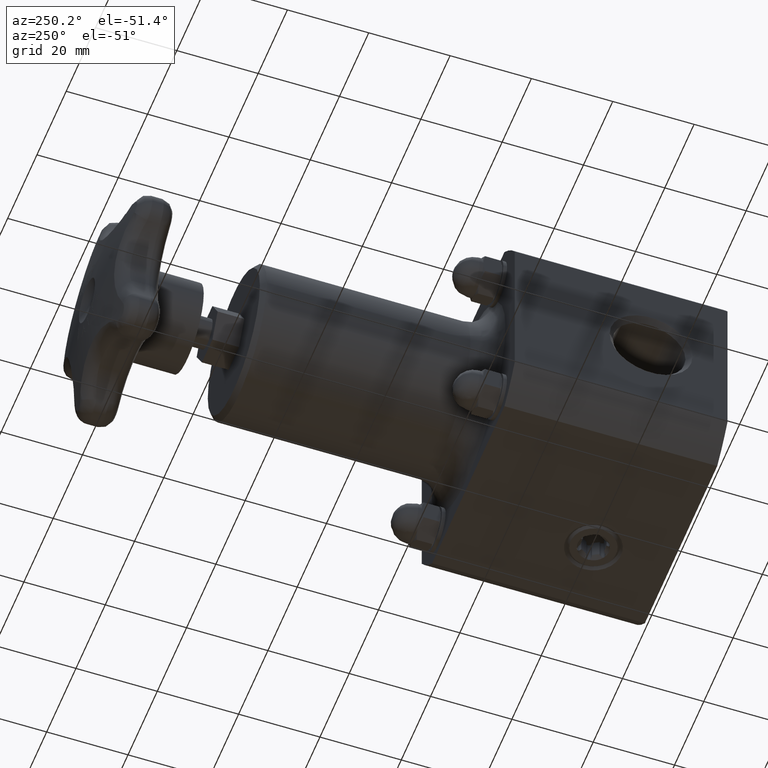
[diagram: clean part render]
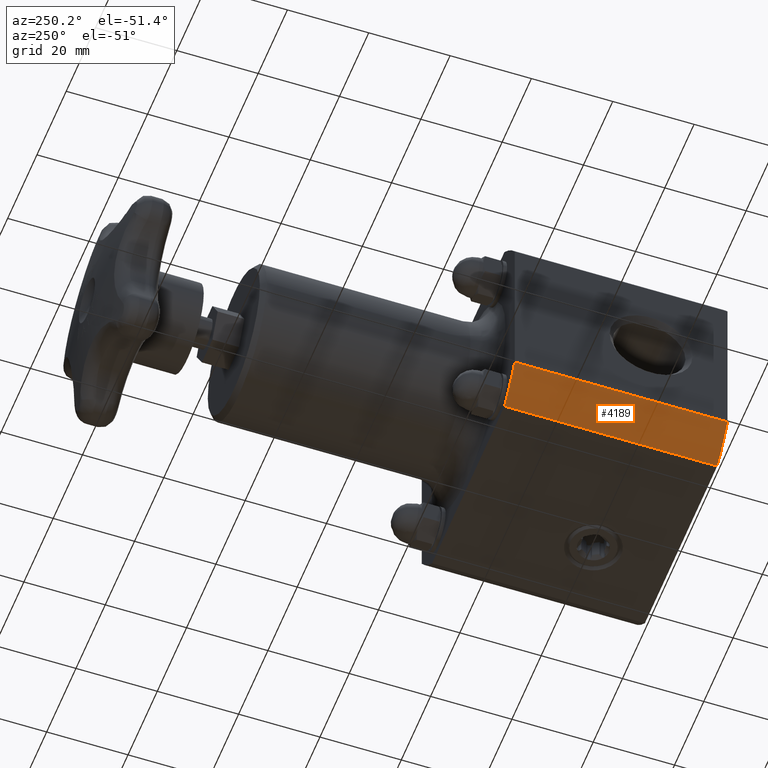
[diagram: same view with one face highlighted and labeled with its STEP entity id]
A machine part, auxiliary view. The second image highlights one B-rep face of the part: STEP entity #4189.
In plain terms, the highlighted cylindrical surface (partial cylindrical patch) has radius 37.7825 mm, axis along (0, 1, 0).
Its self-contained STEP definition (entity closure, byte-faithful):
#3518=CARTESIAN_POINT('',(-1.250000000000000,2.060000000000000,-0.806322671143507));
#3519=VERTEX_POINT('',#3518);
#3569=CARTESIAN_POINT('',(-0.973155306207596,2.060000000000000,-1.125000000000000));
#3570=VERTEX_POINT('',#3569);
#3577=CARTESIAN_POINT('',(1.748383E-016,2.060000000000000,5.245148E-016));
#3578=DIRECTION('',(0.0,-1.0,0.0));
#3579=DIRECTION('',(1.0,0.0,0.0));
#3580=AXIS2_PLACEMENT_3D('',#3577,#3578,#3579);
#3581=CIRCLE('',#3580,1.487500000000000);
#3582=EDGE_CURVE('',#3519,#3570,#3581,.T.);
#3739=CARTESIAN_POINT('',(-0.973155306207596,0.0,-1.125000000000000));
#3740=VERTEX_POINT('',#3739);
#3747=CARTESIAN_POINT('',(-0.973155306207596,0.0,-1.125000000000000));
#3748=DIRECTION('',(0.0,1.0,0.0));
#3749=VECTOR('',#3748,2.060000000000000);
#3750=LINE('',#3747,#3749);
#3751=EDGE_CURVE('',#3740,#3570,#3750,.T.);
#3805=CARTESIAN_POINT('',(-1.250000000000000,0.0,-0.806322671143507));
#3806=VERTEX_POINT('',#3805);
#3807=CARTESIAN_POINT('',(-1.250000000000000,0.0,-0.806322671143507));
#3808=DIRECTION('',(0.0,1.0,0.0));
#3809=VECTOR('',#3808,2.060000000000000);
#3810=LINE('',#3807,#3809);
#3811=EDGE_CURVE('',#3806,#3519,#3810,.T.);
#4172=CARTESIAN_POINT('',(0.0,0.0,0.0));
#4173=DIRECTION('',(0.0,1.0,0.0));
#4174=DIRECTION('',(0.654222054593342,0.0,0.756302521008403));
#4175=AXIS2_PLACEMENT_3D('',#4172,#4173,#4174);
#4176=CYLINDRICAL_SURFACE('',#4175,1.487500000000000);
#4177=ORIENTED_EDGE('',*,*,#3751,.F.);
#4178=CARTESIAN_POINT('',(0.0,0.0,0.0));
#4179=DIRECTION('',(0.0,-1.000000000000000,0.0));
#4180=DIRECTION('',(0.654222054593342,0.0,0.756302521008403));
#4181=AXIS2_PLACEMENT_3D('',#4178,#4179,#4180);
#4182=CIRCLE('',#4181,1.487500000000000);
#4183=EDGE_CURVE('',#3806,#3740,#4182,.T.);
#4184=ORIENTED_EDGE('',*,*,#4183,.F.);
#4185=ORIENTED_EDGE('',*,*,#3811,.T.);
#4186=ORIENTED_EDGE('',*,*,#3582,.T.);
#4187=EDGE_LOOP('',(#4177,#4184,#4185,#4186));
#4188=FACE_OUTER_BOUND('',#4187,.T.);
#4189=ADVANCED_FACE('',(#4188),#4176,.T.);